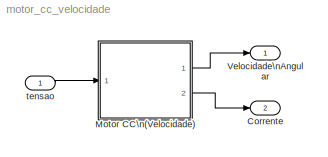
MODEL motor_cc_velocidade
KIND model
BLOCK [Outport] Corrente
  IconDisplay = Port number
  Port = 2
  SID = 11
  VectorParamsAs1DForOutWhenUnconnected = off
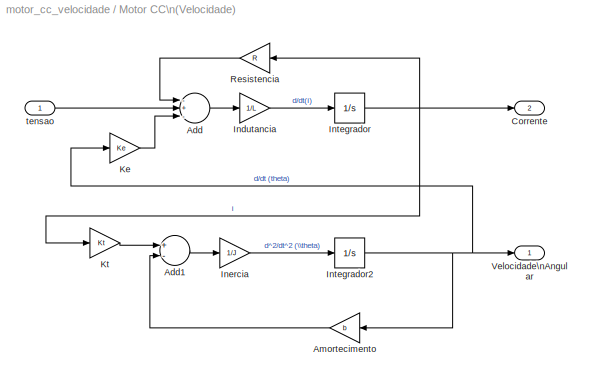
BLOCK [SubSystem] Motor CC\n(Velocidade)
  Ports = [1, 2]
  RequestExecContextInheritance = off
  SID = 14
BLOCK [Sum] Motor CC\n(Velocidade)/Add
  InputSameDT = off
  Inputs = -+-
  OutDataTypeStr = Inherit: Inherit via internal rule
  Ports = [3, 1]
  SID = 2
  SaturateOnIntegerOverflow = off
BLOCK [Sum] Motor CC\n(Velocidade)/Add1
  InputSameDT = off
  Inputs = +-
  OutDataTypeStr = Inherit: Inherit via internal rule
  Ports = [2, 1]
  SID = 7
  SaturateOnIntegerOverflow = off
BLOCK [Gain] Motor CC\n(Velocidade)/Amortecimento
  Gain = b
  OutDataTypeStr = Inherit: Inherit via internal rule
  ParamDataTypeStr = Inherit: Inherit via internal rule
  SID = 10
  SaturateOnIntegerOverflow = off
BLOCK [Outport] Motor CC\n(Velocidade)/Corrente
  IconDisplay = Port number
  Port = 2
  SID = 17
  VectorParamsAs1DForOutWhenUnconnected = off
BLOCK [Gain] Motor CC\n(Velocidade)/Indutancia
  Gain = 1/L
  OutDataTypeStr = Inherit: Inherit via internal rule
  ParamDataTypeStr = Inherit: Inherit via internal rule
  SID = 3
  SaturateOnIntegerOverflow = off
BLOCK [Gain] Motor CC\n(Velocidade)/Inercia
  Gain = 1/J
  OutDataTypeStr = Inherit: Inherit via internal rule
  ParamDataTypeStr = Inherit: Inherit via internal rule
  SID = 8
  SaturateOnIntegerOverflow = off
BLOCK [Integrator] Motor CC\n(Velocidade)/Integrador
  Ports = [1, 1]
  SID = 4
BLOCK [Integrator] Motor CC\n(Velocidade)/Integrador2
  Ports = [1, 1]
  SID = 9
BLOCK [Gain] Motor CC\n(Velocidade)/Ke
  Gain = Ke
  OutDataTypeStr = Inherit: Inherit via internal rule
  ParamDataTypeStr = Inherit: Inherit via internal rule
  SID = 13
  SaturateOnIntegerOverflow = off
BLOCK [Gain] Motor CC\n(Velocidade)/Kt
  Gain = Kt
  OutDataTypeStr = Inherit: Inherit via internal rule
  ParamDataTypeStr = Inherit: Inherit via internal rule
  SID = 12
  SaturateOnIntegerOverflow = off
BLOCK [Gain] Motor CC\n(Velocidade)/Resistencia
  Gain = R
  OutDataTypeStr = Inherit: Inherit via internal rule
  ParamDataTypeStr = Inherit: Inherit via internal rule
  SID = 5
  SaturateOnIntegerOverflow = off
BLOCK [Outport] Motor CC\n(Velocidade)/Velocidade\nAngular
  IconDisplay = Port number
  SID = 16
  VectorParamsAs1DForOutWhenUnconnected = off
BLOCK [Inport] Motor CC\n(Velocidade)/tensao
  IconDisplay = Port number
  SID = 15
BLOCK [Outport] Velocidade\nAngular
  IconDisplay = Port number
  SID = 6
  VectorParamsAs1DForOutWhenUnconnected = off
BLOCK [Inport] tensao
  IconDisplay = Port number
  SID = 1
LINE Motor CC\n(Velocidade)/Add1:1 -> Motor CC\n(Velocidade)/Inercia:1
LINE Motor CC\n(Velocidade)/Add:1 -> Motor CC\n(Velocidade)/Indutancia:1
LINE Motor CC\n(Velocidade)/Amortecimento:1 -> Motor CC\n(Velocidade)/Add1:2
LINE Motor CC\n(Velocidade)/Indutancia:1 -> Motor CC\n(Velocidade)/Integrador:1
LINE Motor CC\n(Velocidade)/Inercia:1 -> Motor CC\n(Velocidade)/Integrador2:1
NET Motor CC\n(Velocidade)/Integrador2:1 -> Motor CC\n(Velocidade)/Amortecimento:1, Motor CC\n(Velocidade)/Ke:1, Motor CC\n(Velocidade)/Velocidade\nAngular:1
NET Motor CC\n(Velocidade)/Integrador:1 -> Motor CC\n(Velocidade)/Corrente:1, Motor CC\n(Velocidade)/Kt:1, Motor CC\n(Velocidade)/Resistencia:1
LINE Motor CC\n(Velocidade)/Ke:1 -> Motor CC\n(Velocidade)/Add:3
LINE Motor CC\n(Velocidade)/Kt:1 -> Motor CC\n(Velocidade)/Add1:1
LINE Motor CC\n(Velocidade)/Resistencia:1 -> Motor CC\n(Velocidade)/Add:1
LINE Motor CC\n(Velocidade)/tensao:1 -> Motor CC\n(Velocidade)/Add:2
LINE Motor CC\n(Velocidade):1 -> Velocidade\nAngular:1
LINE Motor CC\n(Velocidade):2 -> Corrente:1
LINE tensao:1 -> Motor CC\n(Velocidade):1
note: NET lines group one-source signal fan-out (src -> all destinations, sorted); 1:1 wires keep LINE
